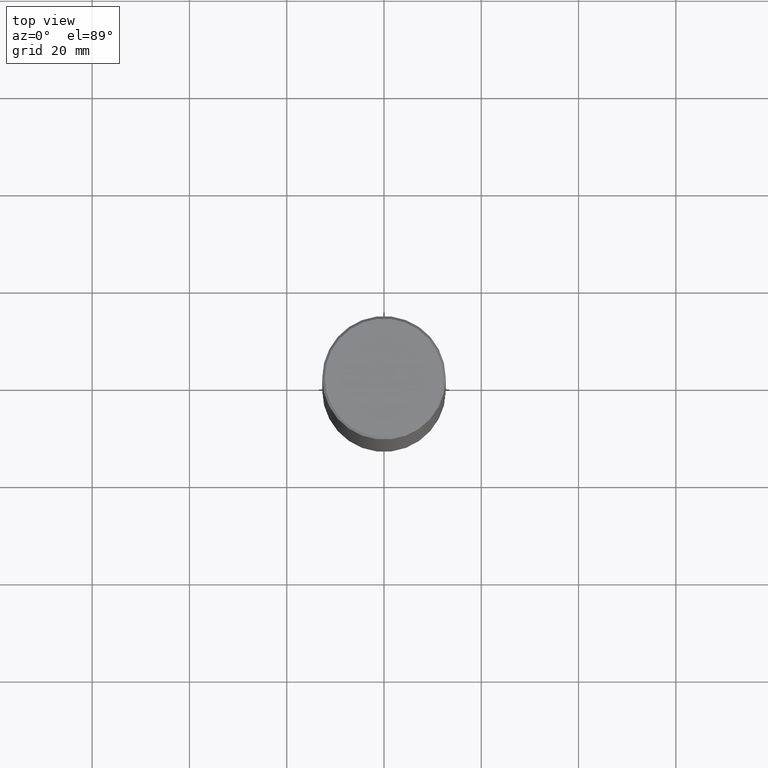
[diagram: clean part render]
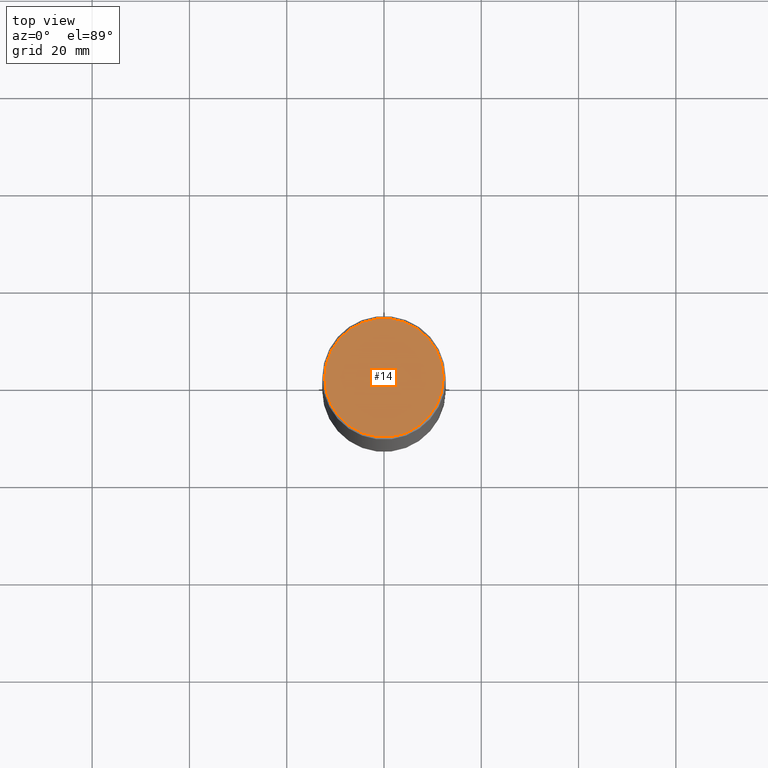
[diagram: same view with one face highlighted and labeled with its STEP entity id]
A machine part, top view. The second image highlights one B-rep face of the part: STEP entity #14.
In plain terms, the highlighted planar face has unit normal (0, -0, -1).
Its self-contained STEP definition (entity closure, byte-faithful):
#3 = FACE_OUTER_BOUND ( 'NONE', #270, .T. ) ;
#14 = ADVANCED_FACE ( 'NONE', ( #3 ), #255, .F. ) ;
#23 = ORIENTED_EDGE ( 'NONE', *, *, #296, .T. ) ;
#34 = AXIS2_PLACEMENT_3D ( 'NONE', #236, #408, #373 ) ;
#54 = VERTEX_POINT ( 'NONE', #333 ) ;
#83 = EDGE_CURVE ( 'NONE', #54, #156, #135, .T. ) ;
#123 = CARTESIAN_POINT ( 'NONE',  ( 0.4799999999999999267, -3.396558832296482099E-15, 1.195183497228351200E-16 ) ) ;
#134 = CARTESIAN_POINT ( 'NONE',  ( 3.351822085289407153E-15, 0.4799999999999999267, -1.616151867783303914E-15 ) ) ;
#135 = CIRCLE ( 'NONE', #247, 0.4799999999999999267 ) ;
#156 = VERTEX_POINT ( 'NONE', #123 ) ;
#165 = CIRCLE ( 'NONE', #34, 0.4799999999999999267 ) ;
#233 = CARTESIAN_POINT ( 'NONE',  ( -2.922783960138615261E-45, 4.172960877065252270E-31, 1.195183497228115035E-16 ) ) ;
#236 = CARTESIAN_POINT ( 'NONE',  ( -2.922783960138615261E-45, 4.172960877065252270E-31, 1.195183497228115035E-16 ) ) ;
#247 = AXIS2_PLACEMENT_3D ( 'NONE', #233, #362, #399 ) ;
#255 = PLANE ( 'NONE',  #380 ) ;
#266 = ORIENTED_EDGE ( 'NONE', *, *, #83, .T. ) ;
#270 = EDGE_LOOP ( 'NONE', ( #266, #23 ) ) ;
#296 = EDGE_CURVE ( 'NONE', #156, #54, #165, .T. ) ;
#321 = DIRECTION ( 'NONE',  ( -1.000000000000000000, 6.982962677686265922E-15, -4.876176775795935793E-29 ) ) ;
#333 = CARTESIAN_POINT ( 'NONE',  ( -0.4799999999999999267, 3.386736898677839197E-15, 1.195183497227879609E-16 ) ) ;
#362 = DIRECTION ( 'NONE',  ( -2.445468806185136597E-29, 3.491481338843145583E-15, 1.000000000000000000 ) ) ;
#373 = DIRECTION ( 'NONE',  ( 1.000000000000000000, -6.982962677686266711E-15, 4.874852205035277589E-29 ) ) ;
#380 = AXIS2_PLACEMENT_3D ( 'NONE', #134, #389, #321 ) ;
#389 = DIRECTION ( 'NONE',  ( 2.438088387897960049E-29, -3.491481338843145188E-15, -1.000000000000000000 ) ) ;
#399 = DIRECTION ( 'NONE',  ( 1.000000000000000000, -6.982962677686266711E-15, 4.874852205035277589E-29 ) ) ;
#408 = DIRECTION ( 'NONE',  ( -2.445468806185136597E-29, 3.491481338843145583E-15, 1.000000000000000000 ) ) ;